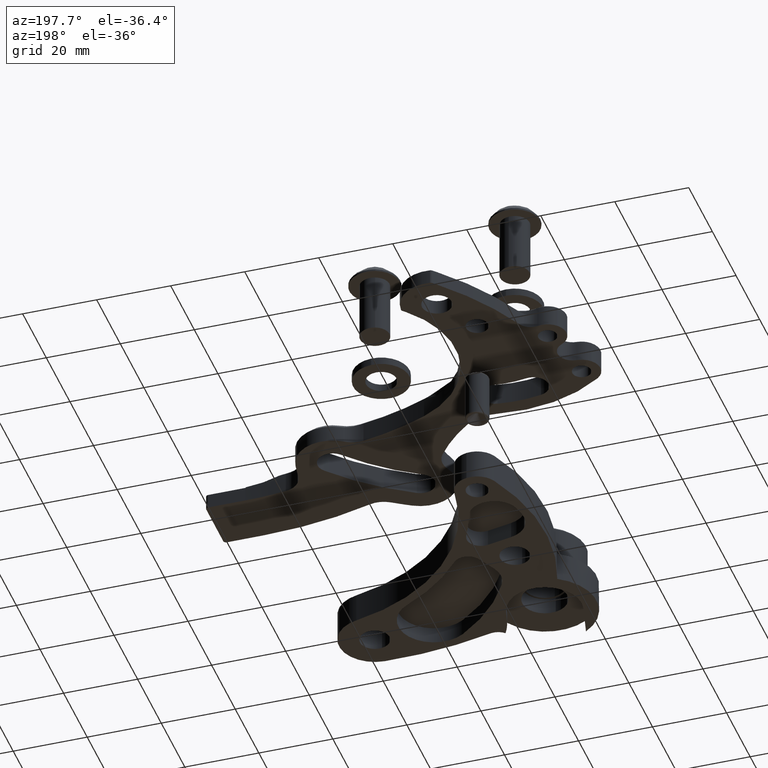
[diagram: clean part render]
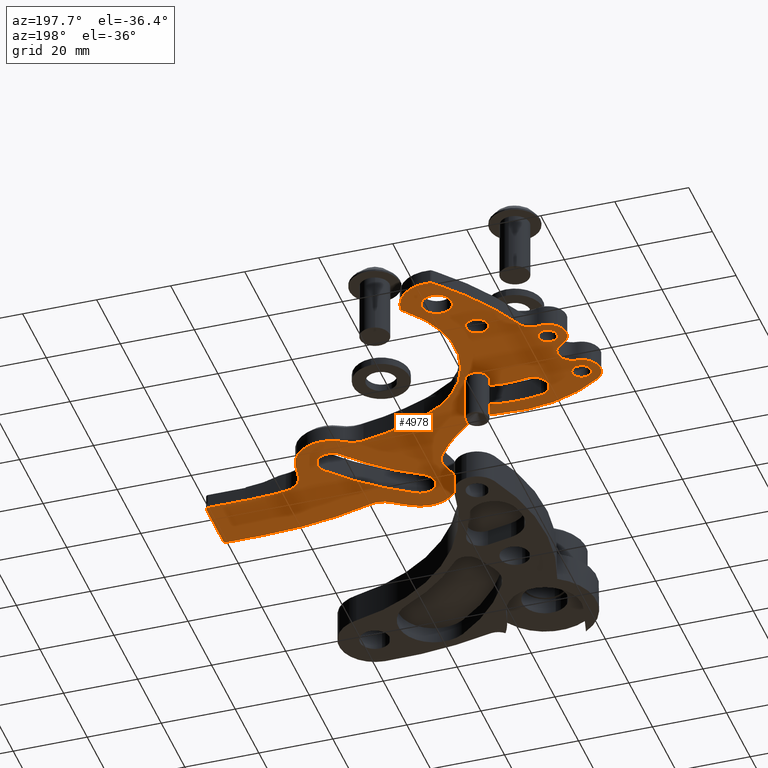
[diagram: same view with one face highlighted and labeled with its STEP entity id]
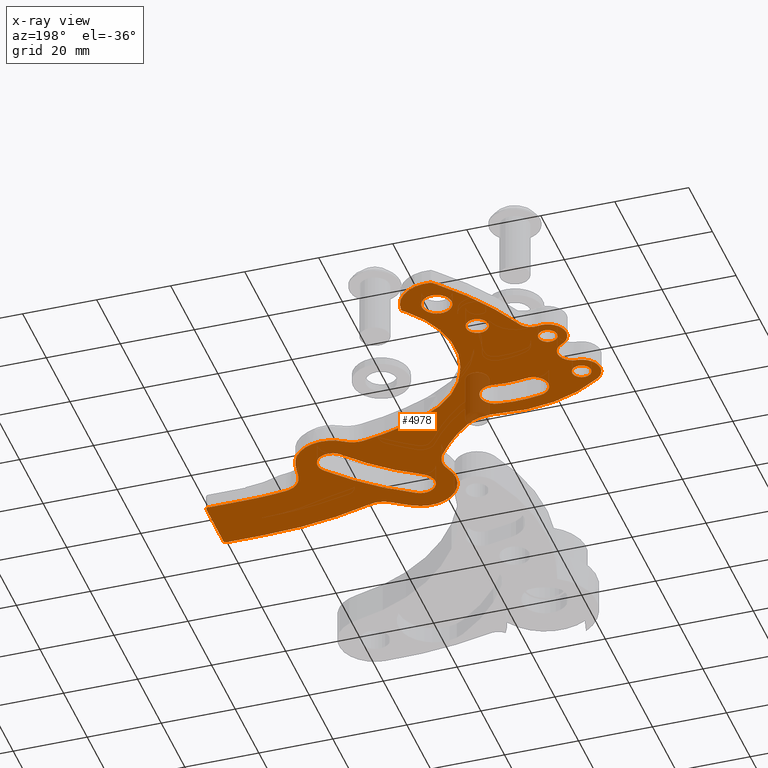
[diagram: x-ray of the same camera — body ghosted, the highlighted face saturated]
A machine part, auxiliary view. The second image highlights one B-rep face of the part: STEP entity #4978.
The next image is the same camera in x-ray: the body ghosted, the highlighted face saturated — about 4% of this face is hidden behind the body in this view.
In plain terms, the highlighted planar face has unit normal (-0, 0, 1).
Its self-contained STEP definition (entity closure, byte-faithful):
#3 = CIRCLE ( 'NONE', #6716, 0.1994999999999998164 ) ;
#44 = DIRECTION ( 'NONE',  ( 1.000000000000000000, 0.0000000000000000000, 0.0000000000000000000 ) ) ;
#54 = DIRECTION ( 'NONE',  ( 1.000000000000000000, 0.0000000000000000000, 0.0000000000000000000 ) ) ;
#58 = VERTEX_POINT ( 'NONE', #4067 ) ;
#64 = CARTESIAN_POINT ( 'NONE',  ( 3.218316619607886508, -0.8014238469952804644, 0.0000000000000000000 ) ) ;
#84 = VERTEX_POINT ( 'NONE', #162 ) ;
#87 = VERTEX_POINT ( 'NONE', #7190 ) ;
#94 = AXIS2_PLACEMENT_3D ( 'NONE', #3101, #7444, #3737 ) ;
#96 = VERTEX_POINT ( 'NONE', #1400 ) ;
#115 = CIRCLE ( 'NONE', #2311, 1.341000000000190928 ) ;
#119 = EDGE_CURVE ( 'NONE', #7473, #6494, #2174, .T. ) ;
#134 = CIRCLE ( 'NONE', #3815, 0.1994853425510682843 ) ;
#140 = CIRCLE ( 'NONE', #2399, 1.100000000000000311 ) ;
#144 = DIRECTION ( 'NONE',  ( -0.0000000000000000000, 0.0000000000000000000, 1.000000000000000000 ) ) ;
#162 = CARTESIAN_POINT ( 'NONE',  ( 0.3470259517561181117, -0.9235978963069315650, 0.0000000000000000000 ) ) ;
#178 = DIRECTION ( 'NONE',  ( -0.0000000000000000000, 0.0000000000000000000, 1.000000000000000000 ) ) ;
#202 = ORIENTED_EDGE ( 'NONE', *, *, #5549, .T. ) ;
#204 = AXIS2_PLACEMENT_3D ( 'NONE', #4808, #1115, #5429 ) ;
#281 = VERTEX_POINT ( 'NONE', #4928 ) ;
#302 = ORIENTED_EDGE ( 'NONE', *, *, #1190, .T. ) ;
#314 = ORIENTED_EDGE ( 'NONE', *, *, #929, .T. ) ;
#318 = LINE ( 'NONE', #7062, #1939 ) ;
#348 = ORIENTED_EDGE ( 'NONE', *, *, #2357, .T. ) ;
#361 = EDGE_CURVE ( 'NONE', #459, #936, #3689, .T. ) ;
#417 = DIRECTION ( 'NONE',  ( 1.000000000000000000, 0.0000000000000000000, 0.0000000000000000000 ) ) ;
#421 = CIRCLE ( 'NONE', #2062, 0.1599999999999993927 ) ;
#422 = AXIS2_PLACEMENT_3D ( 'NONE', #6684, #2959, #7315 ) ;
#424 = ORIENTED_EDGE ( 'NONE', *, *, #4382, .F. ) ;
#427 = DIRECTION ( 'NONE',  ( -0.0000000000000000000, 0.0000000000000000000, 1.000000000000000000 ) ) ;
#432 = CARTESIAN_POINT ( 'NONE',  ( 3.218316619607886508, -0.8014238469952804644, 0.0000000000000000000 ) ) ;
#438 = VERTEX_POINT ( 'NONE', #1127 ) ;
#459 = VERTEX_POINT ( 'NONE', #4242 ) ;
#478 = ORIENTED_EDGE ( 'NONE', *, *, #5106, .F. ) ;
#521 = DIRECTION ( 'NONE',  ( 1.000000000000000000, 0.0000000000000000000, 0.0000000000000000000 ) ) ;
#531 = LINE ( 'NONE', #2674, #2353 ) ;
#553 = EDGE_CURVE ( 'NONE', #5881, #2677, #5827, .T. ) ;
#631 = VERTEX_POINT ( 'NONE', #1981 ) ;
#695 = DIRECTION ( 'NONE',  ( 1.000000000000000000, 0.0000000000000000000, 0.0000000000000000000 ) ) ;
#713 = CIRCLE ( 'NONE', #1278, 0.02999999999999995379 ) ;
#730 = AXIS2_PLACEMENT_3D ( 'NONE', #3869, #178, #4493 ) ;
#739 = CARTESIAN_POINT ( 'NONE',  ( 4.524799744874953511, -0.1040209946029505561, 0.0000000000000000000 ) ) ;
#741 = AXIS2_PLACEMENT_3D ( 'NONE', #2645, #3272, #7615 ) ;
#748 = ORIENTED_EDGE ( 'NONE', *, *, #5743, .T. ) ;
#763 = CARTESIAN_POINT ( 'NONE',  ( 1.389890897375376744, -1.658026812109146819, 0.0000000000000000000 ) ) ;
#787 = CARTESIAN_POINT ( 'NONE',  ( 1.082925233332999948, -1.930057770234999914, 0.0000000000000000000 ) ) ;
#792 = CARTESIAN_POINT ( 'NONE',  ( 0.6151369714634133956, -2.226493662846952493, 0.0000000000000000000 ) ) ;
#797 = CARTESIAN_POINT ( 'NONE',  ( 1.712867017816132931, -0.1743452912502976571, 0.0000000000000000000 ) ) ;
#804 = CIRCLE ( 'NONE', #892, 0.1000000000027319452 ) ;
#813 = DIRECTION ( 'NONE',  ( -0.0000000000000000000, 0.0000000000000000000, 1.000000000000000000 ) ) ;
#828 = FACE_BOUND ( 'NONE', #2476, .T. ) ;
#856 = ORIENTED_EDGE ( 'NONE', *, *, #5722, .F. ) ;
#874 = ORIENTED_EDGE ( 'NONE', *, *, #4366, .T. ) ;
#886 = VERTEX_POINT ( 'NONE', #3614 ) ;
#892 = AXIS2_PLACEMENT_3D ( 'NONE', #1587, #5894, #2208 ) ;
#929 = EDGE_CURVE ( 'NONE', #3705, #2980, #421, .T. ) ;
#936 = VERTEX_POINT ( 'NONE', #4249 ) ;
#950 = AXIS2_PLACEMENT_3D ( 'NONE', #3566, #7908, #4195 ) ;
#959 = DIRECTION ( 'NONE',  ( -0.0000000000000000000, 0.0000000000000000000, 1.000000000000000000 ) ) ;
#977 = VERTEX_POINT ( 'NONE', #5514 ) ;
#989 = DIRECTION ( 'NONE',  ( -0.0000000000000000000, 0.0000000000000000000, 1.000000000000000000 ) ) ;
#1003 = CARTESIAN_POINT ( 'NONE',  ( 0.3445170119687941401, -0.3847233003165552168, 0.0000000000000000000 ) ) ;
#1004 = VECTOR ( 'NONE', #6239, 39.37007874015748854 ) ;
#1005 = CIRCLE ( 'NONE', #422, 3.250000000000001332 ) ;
#1012 = CARTESIAN_POINT ( 'NONE',  ( 0.1590072123376368718, -1.456947889771656568, 0.0000000000000000000 ) ) ;
#1026 = CIRCLE ( 'NONE', #5434, 0.3800000000004652989 ) ;
#1054 = DIRECTION ( 'NONE',  ( 1.000000000000000000, 0.0000000000000000000, 0.0000000000000000000 ) ) ;
#1069 = ORIENTED_EDGE ( 'NONE', *, *, #119, .T. ) ;
#1070 = VERTEX_POINT ( 'NONE', #6886 ) ;
#1110 = CARTESIAN_POINT ( 'NONE',  ( 4.636131911500568137, -0.8111065937326167319, 0.0000000000000000000 ) ) ;
#1115 = DIRECTION ( 'NONE',  ( -0.0000000000000000000, 0.0000000000000000000, 1.000000000000000000 ) ) ;
#1118 = EDGE_CURVE ( 'NONE', #2666, #4728, #3786, .T. ) ;
#1123 = CARTESIAN_POINT ( 'NONE',  ( 2.070015298302739559, -1.214751512754889351, 0.0000000000000000000 ) ) ;
#1127 = CARTESIAN_POINT ( 'NONE',  ( 0.9992132222812661890, -1.793704188669853927, 0.0000000000000000000 ) ) ;
#1166 = CIRCLE ( 'NONE', #94, 0.1180000000004410021 ) ;
#1170 = VECTOR ( 'NONE', #7745, 39.37007874015748854 ) ;
#1188 = CARTESIAN_POINT ( 'NONE',  ( 3.094058861071453670, -1.750472712552832100, 0.0000000000000000000 ) ) ;
#1190 = EDGE_CURVE ( 'NONE', #6662, #4492, #115, .T. ) ;
#1232 = CARTESIAN_POINT ( 'NONE',  ( 1.663602279373885606, -1.843671690562771470, 0.0000000000000000000 ) ) ;
#1245 = ORIENTED_EDGE ( 'NONE', *, *, #5381, .T. ) ;
#1252 = ORIENTED_EDGE ( 'NONE', *, *, #4557, .T. ) ;
#1259 = VERTEX_POINT ( 'NONE', #7098 ) ;
#1271 = EDGE_CURVE ( 'NONE', #2292, #6763, #4463, .T. ) ;
#1278 = AXIS2_PLACEMENT_3D ( 'NONE', #739, #5044, #1346 ) ;
#1282 = AXIS2_PLACEMENT_3D ( 'NONE', #2156, #6466, #2756 ) ;
#1285 = EDGE_CURVE ( 'NONE', #6113, #3099, #2807, .T. ) ;
#1292 = CARTESIAN_POINT ( 'NONE',  ( 1.904702379885852892, 2.146698887048633431, 0.0000000000000000000 ) ) ;
#1293 = DIRECTION ( 'NONE',  ( -0.0000000000000000000, 0.0000000000000000000, 1.000000000000000000 ) ) ;
#1303 = CIRCLE ( 'NONE', #7989, 0.1600000000000985634 ) ;
#1313 = CARTESIAN_POINT ( 'NONE',  ( 0.4650259517565590861, -0.9235978963069315650, 0.0000000000000000000 ) ) ;
#1318 = EDGE_CURVE ( 'NONE', #1383, #1654, #5919, .T. ) ;
#1325 = AXIS2_PLACEMENT_3D ( 'NONE', #7828, #4118, #417 ) ;
#1346 = DIRECTION ( 'NONE',  ( 1.000000000000000000, 0.0000000000000000000, 0.0000000000000000000 ) ) ;
#1354 = EDGE_CURVE ( 'NONE', #4063, #6274, #3884, .T. ) ;
#1383 = VERTEX_POINT ( 'NONE', #1657 ) ;
#1397 = AXIS2_PLACEMENT_3D ( 'NONE', #787, #5092, #1405 ) ;
#1400 = CARTESIAN_POINT ( 'NONE',  ( 0.05000000000024396735, -0.2268133469192753215, 0.0000000000000000000 ) ) ;
#1405 = DIRECTION ( 'NONE',  ( 1.000000000000000000, 0.0000000000000000000, 0.0000000000000000000 ) ) ;
#1408 = DIRECTION ( 'NONE',  ( 1.000000000000000000, 0.0000000000000000000, 0.0000000000000000000 ) ) ;
#1413 = DIRECTION ( 'NONE',  ( 1.000000000000000000, 0.0000000000000000000, 0.0000000000000000000 ) ) ;
#1423 = ORIENTED_EDGE ( 'NONE', *, *, #2101, .T. ) ;
#1457 = CARTESIAN_POINT ( 'NONE',  ( 0.05064887240644196098, -0.1618729927095297338, 0.0000000000000000000 ) ) ;
#1478 = CIRCLE ( 'NONE', #5427, 0.09999999999958655850 ) ;
#1491 = DIRECTION ( 'NONE',  ( -0.0000000000000000000, 0.0000000000000000000, 1.000000000000000000 ) ) ;
#1512 = EDGE_CURVE ( 'NONE', #87, #1654, #3, .T. ) ;
#1533 = EDGE_CURVE ( 'NONE', #438, #58, #7669, .T. ) ;
#1537 = ORIENTED_EDGE ( 'NONE', *, *, #1757, .F. ) ;
#1541 = CARTESIAN_POINT ( 'NONE',  ( 4.212110670702490900, -0.3519432378855344989, 0.0000000000000000000 ) ) ;
#1580 = CARTESIAN_POINT ( 'NONE',  ( 0.3599439301340000563, -1.629029350135778653, 0.0000000000000000000 ) ) ;
#1587 = CARTESIAN_POINT ( 'NONE',  ( 0.2599439301312680417, -1.629029350135778653, 0.0000000000000000000 ) ) ;
#1598 = ORIENTED_EDGE ( 'NONE', *, *, #5987, .F. ) ;
#1602 = CIRCLE ( 'NONE', #5858, 0.1580000000002058369 ) ;
#1620 = DIRECTION ( 'NONE',  ( 1.000000000000000000, 0.0000000000000000000, 0.0000000000000000000 ) ) ;
#1654 = VERTEX_POINT ( 'NONE', #3228 ) ;
#1657 = CARTESIAN_POINT ( 'NONE',  ( 0.4727311496116651246, -2.086797622117739781, 0.0000000000000000000 ) ) ;
#1660 = CARTESIAN_POINT ( 'NONE',  ( 3.759332082083000071, -1.706249236112000078, 0.0000000000000000000 ) ) ;
#1676 = ORIENTED_EDGE ( 'NONE', *, *, #5369, .F. ) ;
#1757 = EDGE_CURVE ( 'NONE', #5037, #7152, #318, .T. ) ;
#1813 = DIRECTION ( 'NONE',  ( 1.000000000000000000, 0.0000000000000000000, 0.0000000000000000000 ) ) ;
#1852 = AXIS2_PLACEMENT_3D ( 'NONE', #2347, #6671, #2949 ) ;
#1867 = AXIS2_PLACEMENT_3D ( 'NONE', #1881, #6192, #2484 ) ;
#1881 = CARTESIAN_POINT ( 'NONE',  ( 3.300000000000244516, -0.2268133469192753215, 0.0000000000000000000 ) ) ;
#1892 = ORIENTED_EDGE ( 'NONE', *, *, #4945, .F. ) ;
#1896 = AXIS2_PLACEMENT_3D ( 'NONE', #6964, #3250, #7597 ) ;
#1915 = DIRECTION ( 'NONE',  ( 1.000000000000000000, 0.0000000000000000000, 0.0000000000000000000 ) ) ;
#1924 = CARTESIAN_POINT ( 'NONE',  ( 2.412351850264531805, 2.227722251277075127, 0.0000000000000000000 ) ) ;
#1939 = VECTOR ( 'NONE', #2744, 39.37007874015748854 ) ;
#1941 = DIRECTION ( 'NONE',  ( 1.000000000000000000, 0.0000000000000000000, 0.0000000000000000000 ) ) ;
#1948 = CIRCLE ( 'NONE', #2125, 0.4569195947049995432 ) ;
#1954 = EDGE_CURVE ( 'NONE', #1259, #7240, #5920, .T. ) ;
#1970 = AXIS2_PLACEMENT_3D ( 'NONE', #3835, #144, #4452 ) ;
#1981 = CARTESIAN_POINT ( 'NONE',  ( 0.1599439301285360826, -1.629029350135778653, 0.0000000000000000000 ) ) ;
#1990 = CIRCLE ( 'NONE', #4510, 2.916000000000440018 ) ;
#2062 = AXIS2_PLACEMENT_3D ( 'NONE', #1188, #5485, #1813 ) ;
#2101 = EDGE_CURVE ( 'NONE', #6242, #7156, #1948, .T. ) ;
#2108 = ORIENTED_EDGE ( 'NONE', *, *, #5739, .T. ) ;
#2118 = EDGE_CURVE ( 'NONE', #6763, #5881, #5243, .T. ) ;
#2122 = AXIS2_PLACEMENT_3D ( 'NONE', #4648, #959, #5274 ) ;
#2125 = AXIS2_PLACEMENT_3D ( 'NONE', #6442, #2724, #7075 ) ;
#2141 = CARTESIAN_POINT ( 'NONE',  ( 4.504446725316999967, -0.08198115352200040229, 0.0000000000000000000 ) ) ;
#2156 = CARTESIAN_POINT ( 'NONE',  ( 1.099197224543875251, 1.613332000653741272, 0.0000000000000000000 ) ) ;
#2174 = CIRCLE ( 'NONE', #2860, 0.09999999999958655850 ) ;
#2177 = CARTESIAN_POINT ( 'NONE',  ( 2.114134716133957426, -2.289350385241168961, 0.0000000000000000000 ) ) ;
#2186 = EDGE_CURVE ( 'NONE', #2383, #5805, #5331, .T. ) ;
#2201 = DIRECTION ( 'NONE',  ( -0.0000000000000000000, 0.0000000000000000000, 1.000000000000000000 ) ) ;
#2208 = DIRECTION ( 'NONE',  ( 1.000000000000000000, 0.0000000000000000000, 0.0000000000000000000 ) ) ;
#2229 = ORIENTED_EDGE ( 'NONE', *, *, #6150, .T. ) ;
#2276 = AXIS2_PLACEMENT_3D ( 'NONE', #7927, #4206, #521 ) ;
#2280 = DIRECTION ( 'NONE',  ( 1.000000000000000000, 0.0000000000000000000, 0.0000000000000000000 ) ) ;
#2292 = VERTEX_POINT ( 'NONE', #6440 ) ;
#2307 = DIRECTION ( 'NONE',  ( -0.0000000000000000000, 0.0000000000000000000, 1.000000000000000000 ) ) ;
#2309 = DIRECTION ( 'NONE',  ( 0.0000000000000000000, 0.0000000000000000000, 1.000000000000000000 ) ) ;
#2310 = EDGE_CURVE ( 'NONE', #6160, #631, #804, .T. ) ;
#2311 = AXIS2_PLACEMENT_3D ( 'NONE', #5186, #1491, #5806 ) ;
#2318 = ORIENTED_EDGE ( 'NONE', *, *, #7582, .T. ) ;
#2347 = CARTESIAN_POINT ( 'NONE',  ( 3.742006512792380502, -0.4413807937162614325, 0.0000000000000000000 ) ) ;
#2353 = VECTOR ( 'NONE', #3937, 39.37007874015748854 ) ;
#2357 = EDGE_CURVE ( 'NONE', #4063, #4316, #3085, .T. ) ;
#2362 = EDGE_CURVE ( 'NONE', #6494, #7473, #1478, .T. ) ;
#2383 = VERTEX_POINT ( 'NONE', #5382 ) ;
#2399 = AXIS2_PLACEMENT_3D ( 'NONE', #797, #5103, #1413 ) ;
#2411 = EDGE_LOOP ( 'NONE', ( #5871, #6445, #302, #3690, #5938 ) ) ;
#2423 = CARTESIAN_POINT ( 'NONE',  ( 0.6151369714640343433, -2.226493662846319666, 0.0000000000000000000 ) ) ;
#2443 = FACE_BOUND ( 'NONE', #3057, .T. ) ;
#2450 = CARTESIAN_POINT ( 'NONE',  ( 0.2599439301312680417, -1.629029350135778653, 0.0000000000000000000 ) ) ;
#2476 = EDGE_LOOP ( 'NONE', ( #7096, #2942 ) ) ;
#2484 = DIRECTION ( 'NONE',  ( 1.000000000000000000, 0.0000000000000000000, 0.0000000000000000000 ) ) ;
#2502 = EDGE_CURVE ( 'NONE', #84, #5087, #4662, .T. ) ;
#2621 = AXIS2_PLACEMENT_3D ( 'NONE', #5885, #2201, #6523 ) ;
#2636 = AXIS2_PLACEMENT_3D ( 'NONE', #6019, #2309, #6644 ) ;
#2639 = CIRCLE ( 'NONE', #5340, 3.401080047430133479 ) ;
#2645 = CARTESIAN_POINT ( 'NONE',  ( 0.0000000000000000000, 0.0000000000000000000, 0.0000000000000000000 ) ) ;
#2660 = EDGE_CURVE ( 'NONE', #3060, #5315, #6863, .T. ) ;
#2666 = VERTEX_POINT ( 'NONE', #7140 ) ;
#2674 = CARTESIAN_POINT ( 'NONE',  ( 2.538155956933691559, -2.748513741087827533, 0.0000000000000000000 ) ) ;
#2677 = VERTEX_POINT ( 'NONE', #3437 ) ;
#2724 = DIRECTION ( 'NONE',  ( -0.0000000000000000000, 0.0000000000000000000, 1.000000000000000000 ) ) ;
#2744 = DIRECTION ( 'NONE',  ( -0.7847005334021109890, 0.6198750461814399593, 0.0000000000000000000 ) ) ;
#2756 = DIRECTION ( 'NONE',  ( 1.000000000000000000, 0.0000000000000000000, 0.0000000000000000000 ) ) ;
#2771 = DIRECTION ( 'NONE',  ( -0.0000000000000000000, 0.0000000000000000000, 1.000000000000000000 ) ) ;
#2806 = CARTESIAN_POINT ( 'NONE',  ( 4.908114946556555225, -0.5191046682885017693, 0.0000000000000000000 ) ) ;
#2807 = LINE ( 'NONE', #2177, #1170 ) ;
#2852 = CARTESIAN_POINT ( 'NONE',  ( 1.166637244384886918, -2.066411351800398588, 0.0000000000000000000 ) ) ;
#2853 = CARTESIAN_POINT ( 'NONE',  ( 3.516102155153874254, -1.648463401808616613, 0.0000000000000000000 ) ) ;
#2860 = AXIS2_PLACEMENT_3D ( 'NONE', #792, #5098, #1408 ) ;
#2866 = CARTESIAN_POINT ( 'NONE',  ( 0.3445170119687941401, -0.3847233003165552168, 0.0000000000000000000 ) ) ;
#2898 = CARTESIAN_POINT ( 'NONE',  ( 0.4650259517565590861, -0.9235978963069315650, 0.0000000000000000000 ) ) ;
#2942 = ORIENTED_EDGE ( 'NONE', *, *, #7210, .T. ) ;
#2949 = DIRECTION ( 'NONE',  ( 1.000000000000000000, 0.0000000000000000000, 0.0000000000000000000 ) ) ;
#2959 = DIRECTION ( 'NONE',  ( -0.0000000000000000000, 0.0000000000000000000, 1.000000000000000000 ) ) ;
#2975 = VERTEX_POINT ( 'NONE', #6376 ) ;
#2980 = VERTEX_POINT ( 'NONE', #6347 ) ;
#3035 = DIRECTION ( 'NONE',  ( 1.000000000000000000, 0.0000000000000000000, 0.0000000000000000000 ) ) ;
#3057 = EDGE_LOOP ( 'NONE', ( #1069, #5645 ) ) ;
#3058 = DIRECTION ( 'NONE',  ( 1.000000000000000000, 0.0000000000000000000, 0.0000000000000000000 ) ) ;
#3060 = VERTEX_POINT ( 'NONE', #5227 ) ;
#3066 = ORIENTED_EDGE ( 'NONE', *, *, #1271, .T. ) ;
#3084 = AXIS2_PLACEMENT_3D ( 'NONE', #7442, #3734, #44 ) ;
#3085 = CIRCLE ( 'NONE', #5009, 0.2500000000004193867 ) ;
#3095 = AXIS2_PLACEMENT_3D ( 'NONE', #64, #4387, #695 ) ;
#3099 = VERTEX_POINT ( 'NONE', #1541 ) ;
#3101 = CARTESIAN_POINT ( 'NONE',  ( 0.4650259517565590861, -0.9235978963069315650, 0.0000000000000000000 ) ) ;
#3157 = VERTEX_POINT ( 'NONE', #1012 ) ;
#3159 = CARTESIAN_POINT ( 'NONE',  ( 0.4650259517565590861, -0.9235978963069315650, 0.0000000000000000000 ) ) ;
#3228 = CARTESIAN_POINT ( 'NONE',  ( 0.3146433588867410536, -1.820884041227305072, 0.0000000000000000000 ) ) ;
#3250 = DIRECTION ( 'NONE',  ( -0.0000000000000000000, 0.0000000000000000000, 1.000000000000000000 ) ) ;
#3272 = DIRECTION ( 'NONE',  ( -0.0000000000000000000, 0.0000000000000000000, 1.000000000000000000 ) ) ;
#3318 = ORIENTED_EDGE ( 'NONE', *, *, #1118, .F. ) ;
#3339 = CARTESIAN_POINT ( 'NONE',  ( 0.4650259517565590861, -0.9235978963069315650, 0.0000000000000000000 ) ) ;
#3437 = CARTESIAN_POINT ( 'NONE',  ( 2.845565366833502807, -0.7275556971911786297, 0.0000000000000000000 ) ) ;
#3444 = DIRECTION ( 'NONE',  ( 1.000000000000000000, 0.0000000000000000000, 0.0000000000000000000 ) ) ;
#3495 = DIRECTION ( 'NONE',  ( 1.000000000000000000, 0.0000000000000000000, 0.0000000000000000000 ) ) ;
#3517 = DIRECTION ( 'NONE',  ( -0.0000000000000000000, 0.0000000000000000000, 1.000000000000000000 ) ) ;
#3533 = DIRECTION ( 'NONE',  ( 1.000000000000000000, 0.0000000000000000000, 0.0000000000000000000 ) ) ;
#3551 = DIRECTION ( 'NONE',  ( -0.0000000000000000000, 0.0000000000000000000, 1.000000000000000000 ) ) ;
#3566 = CARTESIAN_POINT ( 'NONE',  ( 1.082925233332999948, -1.930057770234999914, 0.0000000000000000000 ) ) ;
#3614 = CARTESIAN_POINT ( 'NONE',  ( 3.456552513298889462, -1.864483028290881750, 0.0000000000000000000 ) ) ;
#3617 = ORIENTED_EDGE ( 'NONE', *, *, #5163, .F. ) ;
#3627 = CARTESIAN_POINT ( 'NONE',  ( 1.515190127941640874, -1.757526072505589898, 0.0000000000000000000 ) ) ;
#3689 = CIRCLE ( 'NONE', #3095, 0.1600000000000010303 ) ;
#3690 = ORIENTED_EDGE ( 'NONE', *, *, #4294, .T. ) ;
#3695 = CIRCLE ( 'NONE', #2276, 0.1600000000000010303 ) ;
#3705 = VERTEX_POINT ( 'NONE', #5669 ) ;
#3734 = DIRECTION ( 'NONE',  ( -0.0000000000000000000, 0.0000000000000000000, 1.000000000000000000 ) ) ;
#3737 = DIRECTION ( 'NONE',  ( 1.000000000000000000, 0.0000000000000000000, 0.0000000000000000000 ) ) ;
#3744 = DIRECTION ( 'NONE',  ( -0.0000000000000000000, 0.0000000000000000000, 1.000000000000000000 ) ) ;
#3786 = CIRCLE ( 'NONE', #1896, 0.03000000000000000583 ) ;
#3805 = DIRECTION ( 'NONE',  ( 1.000000000000000000, 0.0000000000000000000, 0.0000000000000000000 ) ) ;
#3815 = AXIS2_PLACEMENT_3D ( 'NONE', #2423, #6750, #3035 ) ;
#3835 = CARTESIAN_POINT ( 'NONE',  ( 0.4650259517565590861, -0.9235978963069315650, 0.0000000000000000000 ) ) ;
#3869 = CARTESIAN_POINT ( 'NONE',  ( 2.494924477056000178, -1.945249481932999958, 0.0000000000000000000 ) ) ;
#3884 = CIRCLE ( 'NONE', #1325, 4.026080047430326658 ) ;
#3937 = DIRECTION ( 'NONE',  ( -0.7346613693540072765, -0.6784339852770456814, 0.0000000000000000000 ) ) ;
#3939 = ORIENTED_EDGE ( 'NONE', *, *, #1318, .T. ) ;
#3959 = CARTESIAN_POINT ( 'NONE',  ( 3.601202966775999936, -0.6196241644479992816, 0.0000000000000000000 ) ) ;
#3961 = VERTEX_POINT ( 'NONE', #6607 ) ;
#3970 = DIRECTION ( 'NONE',  ( 1.000000000000000000, 0.0000000000000000000, 0.0000000000000000000 ) ) ;
#3974 = AXIS2_PLACEMENT_3D ( 'NONE', #2806, #7150, #3444 ) ;
#3986 = EDGE_CURVE ( 'NONE', #281, #6662, #6543, .T. ) ;
#4063 = VERTEX_POINT ( 'NONE', #7350 ) ;
#4067 = CARTESIAN_POINT ( 'NONE',  ( 1.264591666808880799, -1.558527551712520554, 0.0000000000000000000 ) ) ;
#4108 = FACE_BOUND ( 'NONE', #6962, .T. ) ;
#4118 = DIRECTION ( 'NONE',  ( -0.0000000000000000000, 0.0000000000000000000, 1.000000000000000000 ) ) ;
#4122 = CARTESIAN_POINT ( 'NONE',  ( 0.4650259517565590861, -0.9235978963069315650, 0.0000000000000000000 ) ) ;
#4147 = ORIENTED_EDGE ( 'NONE', *, *, #4897, .F. ) ;
#4148 = DIRECTION ( 'NONE',  ( 1.000000000000000000, 0.0000000000000000000, 0.0000000000000000000 ) ) ;
#4195 = DIRECTION ( 'NONE',  ( 1.000000000000000000, 0.0000000000000000000, 0.0000000000000000000 ) ) ;
#4206 = DIRECTION ( 'NONE',  ( -0.0000000000000000000, 0.0000000000000000000, 1.000000000000000000 ) ) ;
#4231 = CARTESIAN_POINT ( 'NONE',  ( 0.6379693111679016759, -2.424668046045471481, 0.0000000000000000000 ) ) ;
#4242 = CARTESIAN_POINT ( 'NONE',  ( 3.058316619607885478, -0.8014238469952804644, 0.0000000000000000000 ) ) ;
#4249 = CARTESIAN_POINT ( 'NONE',  ( 3.058473910298693088, -0.8085166800467595838, 0.0000000000000000000 ) ) ;
#4294 = EDGE_CURVE ( 'NONE', #4492, #58, #1303, .T. ) ;
#4316 = VERTEX_POINT ( 'NONE', #2853 ) ;
#4337 = CARTESIAN_POINT ( 'NONE',  ( 2.737295627195865944, -0.8881031303020008316, 0.0000000000000000000 ) ) ;
#4366 = EDGE_CURVE ( 'NONE', #2975, #977, #1990, .T. ) ;
#4382 = EDGE_CURVE ( 'NONE', #2383, #886, #6539, .T. ) ;
#4387 = DIRECTION ( 'NONE',  ( -0.0000000000000000000, 0.0000000000000000000, 1.000000000000000000 ) ) ;
#4452 = DIRECTION ( 'NONE',  ( 1.000000000000000000, 0.0000000000000000000, 0.0000000000000000000 ) ) ;
#4463 = CIRCLE ( 'NONE', #6045, 1.100000000000000311 ) ;
#4466 = CIRCLE ( 'NONE', #7213, 0.1599999999999993927 ) ;
#4492 = VERTEX_POINT ( 'NONE', #3627 ) ;
#4493 = DIRECTION ( 'NONE',  ( 1.000000000000000000, 0.0000000000000000000, 0.0000000000000000000 ) ) ;
#4504 = CARTESIAN_POINT ( 'NONE',  ( 0.5835204762290000513, -0.1359214834589999865, 0.0000000000000000000 ) ) ;
#4510 = AXIS2_PLACEMENT_3D ( 'NONE', #2898, #7248, #3533 ) ;
#4519 = EDGE_LOOP ( 'NONE', ( #6375, #5566 ) ) ;
#4551 = EDGE_CURVE ( 'NONE', #96, #6237, #5368, .T. ) ;
#4557 = EDGE_CURVE ( 'NONE', #3157, #6237, #6811, .T. ) ;
#4568 = VERTEX_POINT ( 'NONE', #5559 ) ;
#4607 = ORIENTED_EDGE ( 'NONE', *, *, #2118, .T. ) ;
#4648 = CARTESIAN_POINT ( 'NONE',  ( 2.151479287986020061, -3.581769660664826382, 0.0000000000000000000 ) ) ;
#4652 = AXIS2_PLACEMENT_3D ( 'NONE', #2450, #6779, #3058 ) ;
#4662 = CIRCLE ( 'NONE', #1970, 0.1180000000004410021 ) ;
#4686 = ORIENTED_EDGE ( 'NONE', *, *, #4551, .F. ) ;
#4687 = CARTESIAN_POINT ( 'NONE',  ( 0.3585125749290072328, -1.974752465160992676, 0.0000000000000000000 ) ) ;
#4728 = VERTEX_POINT ( 'NONE', #1457 ) ;
#4737 = DIRECTION ( 'NONE',  ( 1.000000000000000000, 0.0000000000000000000, 0.0000000000000000000 ) ) ;
#4741 = DIRECTION ( 'NONE',  ( -0.0000000000000000000, 0.0000000000000000000, 1.000000000000000000 ) ) ;
#4745 = EDGE_CURVE ( 'NONE', #5402, #6274, #531, .T. ) ;
#4808 = CARTESIAN_POINT ( 'NONE',  ( 0.2599439301312653217, -1.629029350135779763, 0.0000000000000000000 ) ) ;
#4897 = EDGE_CURVE ( 'NONE', #6137, #2666, #6122, .T. ) ;
#4909 = AXIS2_PLACEMENT_3D ( 'NONE', #7267, #3551, #7902 ) ;
#4914 = ORIENTED_EDGE ( 'NONE', *, *, #7330, .F. ) ;
#4928 = CARTESIAN_POINT ( 'NONE',  ( 0.9229252333330000280, -1.930057770234999914, 0.0000000000000000000 ) ) ;
#4942 = EDGE_CURVE ( 'NONE', #5242, #1070, #1602, .T. ) ;
#4945 = EDGE_CURVE ( 'NONE', #7152, #2677, #1026, .T. ) ;
#4978 = ADVANCED_FACE ( 'NONE', ( #5740, #7384, #4108, #2443, #828, #7212, #5528 ), #7241, .F. ) ;
#4990 = CARTESIAN_POINT ( 'NONE',  ( 0.2599439301312653217, -1.629029350135779763, 0.0000000000000000000 ) ) ;
#5009 = AXIS2_PLACEMENT_3D ( 'NONE', #1660, #5976, #2280 ) ;
#5019 = AXIS2_PLACEMENT_3D ( 'NONE', #1003, #5308, #1620 ) ;
#5037 = VERTEX_POINT ( 'NONE', #3959 ) ;
#5044 = DIRECTION ( 'NONE',  ( -0.0000000000000000000, 0.0000000000000000000, 1.000000000000000000 ) ) ;
#5069 = AXIS2_PLACEMENT_3D ( 'NONE', #4504, #813, #5119 ) ;
#5081 = DIRECTION ( 'NONE',  ( -0.0000000000000000000, 0.0000000000000000000, 1.000000000000000000 ) ) ;
#5087 = VERTEX_POINT ( 'NONE', #5869 ) ;
#5092 = DIRECTION ( 'NONE',  ( -0.0000000000000000000, 0.0000000000000000000, 1.000000000000000000 ) ) ;
#5098 = DIRECTION ( 'NONE',  ( -0.0000000000000000000, 0.0000000000000000000, 1.000000000000000000 ) ) ;
#5103 = DIRECTION ( 'NONE',  ( -0.0000000000000000000, 0.0000000000000000000, 1.000000000000000000 ) ) ;
#5106 = EDGE_CURVE ( 'NONE', #5402, #1259, #6210, .T. ) ;
#5119 = DIRECTION ( 'NONE',  ( 1.000000000000000000, 0.0000000000000000000, 0.0000000000000000000 ) ) ;
#5121 = ORIENTED_EDGE ( 'NONE', *, *, #7746, .F. ) ;
#5163 = EDGE_CURVE ( 'NONE', #3705, #936, #7478, .T. ) ;
#5186 = CARTESIAN_POINT ( 'NONE',  ( 0.4650259517565590861, -0.9235978963069315650, 0.0000000000000000000 ) ) ;
#5202 = ORIENTED_EDGE ( 'NONE', *, *, #1512, .F. ) ;
#5227 = CARTESIAN_POINT ( 'NONE',  ( 0.4156516289129659758, -2.226493662846319666, 0.0000000000000000000 ) ) ;
#5242 = VERTEX_POINT ( 'NONE', #6635 ) ;
#5243 = CIRCLE ( 'NONE', #1282, 2.990074261811999534 ) ;
#5248 = CARTESIAN_POINT ( 'NONE',  ( 0.6043033861647076899, -0.1142865428627268948, 0.0000000000000000000 ) ) ;
#5260 = CIRCLE ( 'NONE', #4652, 0.1000000000027319452 ) ;
#5274 = DIRECTION ( 'NONE',  ( 1.000000000000000000, 0.0000000000000000000, 0.0000000000000000000 ) ) ;
#5300 = DIRECTION ( 'NONE',  ( 1.000000000000000000, 0.0000000000000000000, 0.0000000000000000000 ) ) ;
#5308 = DIRECTION ( 'NONE',  ( -0.0000000000000000000, 0.0000000000000000000, 1.000000000000000000 ) ) ;
#5315 = VERTEX_POINT ( 'NONE', #4231 ) ;
#5331 = CIRCLE ( 'NONE', #730, 0.2500000000000462408 ) ;
#5340 = AXIS2_PLACEMENT_3D ( 'NONE', #1292, #5595, #1915 ) ;
#5358 = CIRCLE ( 'NONE', #204, 0.1994999999999998164 ) ;
#5368 = CIRCLE ( 'NONE', #1867, 3.250000000000001332 ) ;
#5369 = EDGE_CURVE ( 'NONE', #1383, #3060, #134, .T. ) ;
#5381 = EDGE_CURVE ( 'NONE', #631, #6160, #5260, .T. ) ;
#5382 = CARTESIAN_POINT ( 'NONE',  ( 2.732676216744846176, -1.867957113131479163, 0.0000000000000000000 ) ) ;
#5402 = VERTEX_POINT ( 'NONE', #6155 ) ;
#5403 = ORIENTED_EDGE ( 'NONE', *, *, #361, .T. ) ;
#5427 = AXIS2_PLACEMENT_3D ( 'NONE', #7235, #3517, #7857 ) ;
#5429 = DIRECTION ( 'NONE',  ( 1.000000000000000000, 0.0000000000000000000, 0.0000000000000000000 ) ) ;
#5434 = AXIS2_PLACEMENT_3D ( 'NONE', #432, #4741, #1054 ) ;
#5444 = CIRCLE ( 'NONE', #5690, 1.511000000000322752 ) ;
#5485 = DIRECTION ( 'NONE',  ( -0.0000000000000000000, 0.0000000000000000000, 1.000000000000000000 ) ) ;
#5492 = ORIENTED_EDGE ( 'NONE', *, *, #1354, .F. ) ;
#5509 = CARTESIAN_POINT ( 'NONE',  ( 3.453869137156250435, -0.5032376443016820522, 0.0000000000000000000 ) ) ;
#5514 = CARTESIAN_POINT ( 'NONE',  ( 3.378159328917082149, -0.7943310139438028994, 0.0000000000000000000 ) ) ;
#5527 = CIRCLE ( 'NONE', #1852, 0.2271482726779998906 ) ;
#5528 = FACE_BOUND ( 'NONE', #6340, .T. ) ;
#5540 = ORIENTED_EDGE ( 'NONE', *, *, #2310, .T. ) ;
#5549 = EDGE_CURVE ( 'NONE', #4568, #2292, #140, .T. ) ;
#5559 = CARTESIAN_POINT ( 'NONE',  ( 0.6135031277755617074, -0.1369415845507869212, 0.0000000000000000000 ) ) ;
#5566 = ORIENTED_EDGE ( 'NONE', *, *, #7960, .T. ) ;
#5595 = DIRECTION ( 'NONE',  ( -0.0000000000000000000, 0.0000000000000000000, 1.000000000000000000 ) ) ;
#5596 = DIRECTION ( 'NONE',  ( 1.000000000000000000, 0.0000000000000000000, 0.0000000000000000000 ) ) ;
#5607 = CIRCLE ( 'NONE', #1397, 0.1599999999999999201 ) ;
#5639 = DIRECTION ( 'NONE',  ( -0.0000000000000000000, 0.0000000000000000000, 1.000000000000000000 ) ) ;
#5645 = ORIENTED_EDGE ( 'NONE', *, *, #2362, .T. ) ;
#5669 = CARTESIAN_POINT ( 'NONE',  ( 2.941429954870323105, -1.702468369084278788, 0.0000000000000000000 ) ) ;
#5690 = AXIS2_PLACEMENT_3D ( 'NONE', #3339, #7695, #3970 ) ;
#5722 = EDGE_CURVE ( 'NONE', #3157, #87, #5358, .T. ) ;
#5739 = EDGE_CURVE ( 'NONE', #5037, #3961, #5527, .T. ) ;
#5740 = FACE_BOUND ( 'NONE', #4519, .T. ) ;
#5743 = EDGE_CURVE ( 'NONE', #977, #459, #3695, .T. ) ;
#5805 = VERTEX_POINT ( 'NONE', #7987 ) ;
#5806 = DIRECTION ( 'NONE',  ( 1.000000000000000000, 0.0000000000000000000, 0.0000000000000000000 ) ) ;
#5827 = CIRCLE ( 'NONE', #7812, 0.2500000000000003331 ) ;
#5858 = AXIS2_PLACEMENT_3D ( 'NONE', #2866, #7220, #3495 ) ;
#5869 = CARTESIAN_POINT ( 'NONE',  ( 0.5830259517570001160, -0.9235978963069315650, 0.0000000000000000000 ) ) ;
#5871 = ORIENTED_EDGE ( 'NONE', *, *, #6459, .T. ) ;
#5881 = VERTEX_POINT ( 'NONE', #4337 ) ;
#5885 = CARTESIAN_POINT ( 'NONE',  ( 0.6151369714640343433, -2.226493662846319666, 0.0000000000000000000 ) ) ;
#5894 = DIRECTION ( 'NONE',  ( -0.0000000000000000000, 0.0000000000000000000, 1.000000000000000000 ) ) ;
#5919 = CIRCLE ( 'NONE', #6868, 0.1599999999999999201 ) ;
#5920 = LINE ( 'NONE', #1924, #1004 ) ;
#5938 = ORIENTED_EDGE ( 'NONE', *, *, #1533, .F. ) ;
#5976 = DIRECTION ( 'NONE',  ( -0.0000000000000000000, 0.0000000000000000000, 1.000000000000000000 ) ) ;
#5987 = EDGE_CURVE ( 'NONE', #7240, #6113, #713, .T. ) ;
#5994 = CARTESIAN_POINT ( 'NONE',  ( 0.2250363428774994623, -1.279000833717287344, 0.0000000000000000000 ) ) ;
#6015 = ORIENTED_EDGE ( 'NONE', *, *, #553, .T. ) ;
#6016 = CARTESIAN_POINT ( 'NONE',  ( 3.094058861071453670, -1.750472712552832100, 0.0000000000000000000 ) ) ;
#6019 = CARTESIAN_POINT ( 'NONE',  ( 0.3445170119687941401, -0.3847233003165552168, 0.0000000000000000000 ) ) ;
#6045 = AXIS2_PLACEMENT_3D ( 'NONE', #6488, #2771, #7124 ) ;
#6113 = VERTEX_POINT ( 'NONE', #2141 ) ;
#6122 = CIRCLE ( 'NONE', #5019, 0.3749999999999998890 ) ;
#6137 = VERTEX_POINT ( 'NONE', #5248 ) ;
#6148 = ORIENTED_EDGE ( 'NONE', *, *, #4745, .T. ) ;
#6150 = EDGE_CURVE ( 'NONE', #5805, #6242, #7963, .T. ) ;
#6155 = CARTESIAN_POINT ( 'NONE',  ( 4.928467966114999932, -0.5411445093689998265, 0.0000000000000000000 ) ) ;
#6160 = VERTEX_POINT ( 'NONE', #1580 ) ;
#6167 = ORIENTED_EDGE ( 'NONE', *, *, #2186, .T. ) ;
#6192 = DIRECTION ( 'NONE',  ( -0.0000000000000000000, 0.0000000000000000000, 1.000000000000000000 ) ) ;
#6195 = CARTESIAN_POINT ( 'NONE',  ( 4.546839585955652296, -0.08366797504472346658, 0.0000000000000000000 ) ) ;
#6210 = CIRCLE ( 'NONE', #3974, 0.03000000000000104666 ) ;
#6237 = VERTEX_POINT ( 'NONE', #5994 ) ;
#6239 = DIRECTION ( 'NONE',  ( -0.6784339852766400059, 0.7346613693543818657, 0.0000000000000000000 ) ) ;
#6242 = VERTEX_POINT ( 'NONE', #6626 ) ;
#6274 = VERTEX_POINT ( 'NONE', #1110 ) ;
#6340 = EDGE_LOOP ( 'NONE', ( #314, #6464, #874, #748, #5403, #3617 ) ) ;
#6347 = CARTESIAN_POINT ( 'NONE',  ( 2.934058861071454416, -1.750472712552832100, 0.0000000000000000000 ) ) ;
#6375 = ORIENTED_EDGE ( 'NONE', *, *, #4942, .T. ) ;
#6376 = CARTESIAN_POINT ( 'NONE',  ( 3.246687767272582015, -1.798477056021385190, 0.0000000000000000000 ) ) ;
#6440 = CARTESIAN_POINT ( 'NONE',  ( 0.6128670178161328419, -0.1743452912502976571, 0.0000000000000000000 ) ) ;
#6442 = CARTESIAN_POINT ( 'NONE',  ( 2.026046362654294608, -2.121897862085991182, 0.0000000000000000000 ) ) ;
#6445 = ORIENTED_EDGE ( 'NONE', *, *, #3986, .T. ) ;
#6458 = AXIS2_PLACEMENT_3D ( 'NONE', #4122, #427, #4737 ) ;
#6459 = EDGE_CURVE ( 'NONE', #438, #281, #5607, .T. ) ;
#6464 = ORIENTED_EDGE ( 'NONE', *, *, #6734, .T. ) ;
#6466 = DIRECTION ( 'NONE',  ( -0.0000000000000000000, 0.0000000000000000000, 1.000000000000000000 ) ) ;
#6488 = CARTESIAN_POINT ( 'NONE',  ( 1.712867017816132931, -0.1743452912502976571, 0.0000000000000000000 ) ) ;
#6494 = VERTEX_POINT ( 'NONE', #7009 ) ;
#6523 = DIRECTION ( 'NONE',  ( 1.000000000000000000, 0.0000000000000000000, 0.0000000000000000000 ) ) ;
#6539 = CIRCLE ( 'NONE', #4909, 0.3799999999998353029 ) ;
#6543 = CIRCLE ( 'NONE', #950, 0.1599999999999999201 ) ;
#6607 = CARTESIAN_POINT ( 'NONE',  ( 3.873496566704353050, -0.6266014823626999686, 0.0000000000000000000 ) ) ;
#6626 = CARTESIAN_POINT ( 'NONE',  ( 1.986931712557773677, -1.666655552789932937, 0.0000000000000000000 ) ) ;
#6632 = ORIENTED_EDGE ( 'NONE', *, *, #2660, .F. ) ;
#6635 = CARTESIAN_POINT ( 'NONE',  ( 0.1865170119685882755, -0.3847233003165552168, 0.0000000000000000000 ) ) ;
#6641 = DIRECTION ( 'NONE',  ( 1.000000000000000000, 0.0000000000000000000, 0.0000000000000000000 ) ) ;
#6644 = DIRECTION ( 'NONE',  ( 1.000000000000000000, 0.0000000000000000000, 0.0000000000000000000 ) ) ;
#6662 = VERTEX_POINT ( 'NONE', #2852 ) ;
#6671 = DIRECTION ( 'NONE',  ( -0.0000000000000000000, 0.0000000000000000000, 1.000000000000000000 ) ) ;
#6684 = CARTESIAN_POINT ( 'NONE',  ( 3.300000000000244516, -0.2268133469192753215, 0.0000000000000000000 ) ) ;
#6716 = AXIS2_PLACEMENT_3D ( 'NONE', #4990, #1293, #5596 ) ;
#6734 = EDGE_CURVE ( 'NONE', #2980, #2975, #4466, .T. ) ;
#6750 = DIRECTION ( 'NONE',  ( -0.0000000000000000000, 0.0000000000000000000, 1.000000000000000000 ) ) ;
#6763 = VERTEX_POINT ( 'NONE', #1123 ) ;
#6766 = EDGE_CURVE ( 'NONE', #4728, #96, #1005, .T. ) ;
#6779 = DIRECTION ( 'NONE',  ( -0.0000000000000000000, 0.0000000000000000000, 1.000000000000000000 ) ) ;
#6811 = CIRCLE ( 'NONE', #3084, 0.1499999999999998834 ) ;
#6863 = CIRCLE ( 'NONE', #2621, 0.1994853425510682843 ) ;
#6868 = AXIS2_PLACEMENT_3D ( 'NONE', #4687, #989, #5300 ) ;
#6886 = CARTESIAN_POINT ( 'NONE',  ( 0.5025170119690000048, -0.3847233003165552168, 0.0000000000000000000 ) ) ;
#6908 = ORIENTED_EDGE ( 'NONE', *, *, #6766, .F. ) ;
#6962 = EDGE_LOOP ( 'NONE', ( #1245, #5540 ) ) ;
#6964 = CARTESIAN_POINT ( 'NONE',  ( 0.08064288281499999711, -0.1624724421329999668, 0.0000000000000000000 ) ) ;
#7002 = AXIS2_PLACEMENT_3D ( 'NONE', #3159, #7511, #3805 ) ;
#7009 = CARTESIAN_POINT ( 'NONE',  ( 0.7151369714629999264, -2.226493662846952493, 0.0000000000000000000 ) ) ;
#7019 = CIRCLE ( 'NONE', #7002, 3.136000000000572108 ) ;
#7055 = EDGE_LOOP ( 'NONE', ( #6148, #5492, #348, #7298, #424, #6167, #2229, #1423, #5121, #6632, #1676, #3939, #5202, #856, #1252, #4686, #6908, #3318, #4147, #4914, #202, #3066, #4607, #6015, #1892, #1537, #2108, #2318, #7378, #1598, #7703, #478 ) ) ;
#7062 = CARTESIAN_POINT ( 'NONE',  ( 1.082349215733405368, 1.370147116173410451, 0.0000000000000000000 ) ) ;
#7075 = DIRECTION ( 'NONE',  ( 1.000000000000000000, 0.0000000000000000000, 0.0000000000000000000 ) ) ;
#7096 = ORIENTED_EDGE ( 'NONE', *, *, #2502, .T. ) ;
#7098 = CARTESIAN_POINT ( 'NONE',  ( 4.930154787637001768, -0.4987516487300001078, 0.0000000000000000000 ) ) ;
#7124 = DIRECTION ( 'NONE',  ( 1.000000000000000000, 0.0000000000000000000, 0.0000000000000000000 ) ) ;
#7140 = CARTESIAN_POINT ( 'NONE',  ( 0.05769730636681905805, -0.1431462805518509407, 0.0000000000000000000 ) ) ;
#7150 = DIRECTION ( 'NONE',  ( -0.0000000000000000000, 0.0000000000000000000, 1.000000000000000000 ) ) ;
#7152 = VERTEX_POINT ( 'NONE', #5509 ) ;
#7156 = VERTEX_POINT ( 'NONE', #1232 ) ;
#7190 = CARTESIAN_POINT ( 'NONE',  ( 0.06044393013126551223, -1.629029350135779763, 0.0000000000000000000 ) ) ;
#7207 = CIRCLE ( 'NONE', #2636, 0.1580000000002058369 ) ;
#7210 = EDGE_CURVE ( 'NONE', #5087, #84, #1166, .T. ) ;
#7212 = FACE_BOUND ( 'NONE', #2411, .T. ) ;
#7213 = AXIS2_PLACEMENT_3D ( 'NONE', #6016, #2307, #6641 ) ;
#7220 = DIRECTION ( 'NONE',  ( 0.0000000000000000000, 0.0000000000000000000, 1.000000000000000000 ) ) ;
#7235 = CARTESIAN_POINT ( 'NONE',  ( 0.6151369714634133956, -2.226493662846952493, 0.0000000000000000000 ) ) ;
#7240 = VERTEX_POINT ( 'NONE', #6195 ) ;
#7241 = PLANE ( 'NONE',  #741 ) ;
#7248 = DIRECTION ( 'NONE',  ( -0.0000000000000000000, 0.0000000000000000000, 1.000000000000000000 ) ) ;
#7267 = CARTESIAN_POINT ( 'NONE',  ( 3.094058861071453670, -1.750472712552832100, 0.0000000000000000000 ) ) ;
#7298 = ORIENTED_EDGE ( 'NONE', *, *, #7609, .F. ) ;
#7315 = DIRECTION ( 'NONE',  ( 1.000000000000000000, 0.0000000000000000000, 0.0000000000000000000 ) ) ;
#7330 = EDGE_CURVE ( 'NONE', #4568, #6137, #7493, .T. ) ;
#7350 = CARTESIAN_POINT ( 'NONE',  ( 3.650901598928330660, -1.480987543134577145, 0.0000000000000000000 ) ) ;
#7378 = ORIENTED_EDGE ( 'NONE', *, *, #1285, .F. ) ;
#7384 = FACE_OUTER_BOUND ( 'NONE', #7055, .T. ) ;
#7442 = CARTESIAN_POINT ( 'NONE',  ( 0.08311494331799999802, -1.327563333107999899, 0.0000000000000000000 ) ) ;
#7444 = DIRECTION ( 'NONE',  ( -0.0000000000000000000, 0.0000000000000000000, 1.000000000000000000 ) ) ;
#7456 = CARTESIAN_POINT ( 'NONE',  ( 2.600334279481999911, -0.6789582302150000137, 0.0000000000000000000 ) ) ;
#7473 = VERTEX_POINT ( 'NONE', #7757 ) ;
#7478 = CIRCLE ( 'NONE', #6458, 2.596000000000439734 ) ;
#7493 = CIRCLE ( 'NONE', #5069, 0.03000000000000002318 ) ;
#7511 = DIRECTION ( 'NONE',  ( -0.0000000000000000000, 0.0000000000000000000, 1.000000000000000000 ) ) ;
#7546 = AXIS2_PLACEMENT_3D ( 'NONE', #1313, #5639, #1941 ) ;
#7582 = EDGE_CURVE ( 'NONE', #3961, #3099, #2639, .T. ) ;
#7597 = DIRECTION ( 'NONE',  ( 1.000000000000000000, 0.0000000000000000000, 0.0000000000000000000 ) ) ;
#7609 = EDGE_CURVE ( 'NONE', #886, #4316, #7019, .T. ) ;
#7615 = DIRECTION ( 'NONE',  ( 1.000000000000000000, 0.0000000000000000000, 0.0000000000000000000 ) ) ;
#7669 = CIRCLE ( 'NONE', #7546, 1.021000000000091834 ) ;
#7695 = DIRECTION ( 'NONE',  ( -0.0000000000000000000, 0.0000000000000000000, 1.000000000000000000 ) ) ;
#7703 = ORIENTED_EDGE ( 'NONE', *, *, #1954, .F. ) ;
#7745 = DIRECTION ( 'NONE',  ( -0.7346613693542004553, -0.6784339852768365153, 0.0000000000000000000 ) ) ;
#7746 = EDGE_CURVE ( 'NONE', #5315, #7156, #5444, .T. ) ;
#7757 = CARTESIAN_POINT ( 'NONE',  ( 0.5151369714638268649, -2.226493662846952493, 0.0000000000000000000 ) ) ;
#7812 = AXIS2_PLACEMENT_3D ( 'NONE', #7456, #3744, #54 ) ;
#7828 = CARTESIAN_POINT ( 'NONE',  ( 1.904702379885852892, 2.146698887048633431, 0.0000000000000000000 ) ) ;
#7857 = DIRECTION ( 'NONE',  ( 1.000000000000000000, 0.0000000000000000000, 0.0000000000000000000 ) ) ;
#7902 = DIRECTION ( 'NONE',  ( 1.000000000000000000, 0.0000000000000000000, 0.0000000000000000000 ) ) ;
#7908 = DIRECTION ( 'NONE',  ( -0.0000000000000000000, 0.0000000000000000000, 1.000000000000000000 ) ) ;
#7927 = CARTESIAN_POINT ( 'NONE',  ( 3.218316619607886508, -0.8014238469952804644, 0.0000000000000000000 ) ) ;
#7960 = EDGE_CURVE ( 'NONE', #1070, #5242, #7207, .T. ) ;
#7963 = CIRCLE ( 'NONE', #2122, 1.922170114937999497 ) ;
#7987 = CARTESIAN_POINT ( 'NONE',  ( 2.546271703334524350, -1.700579372697111014, 0.0000000000000000000 ) ) ;
#7989 = AXIS2_PLACEMENT_3D ( 'NONE', #763, #5081, #4148 ) ;